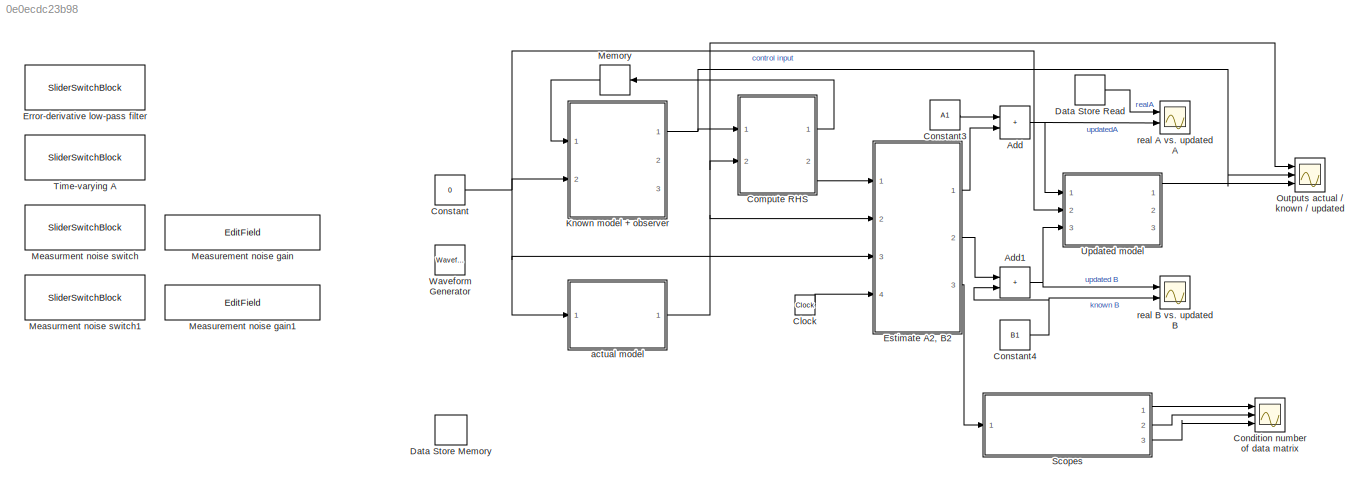
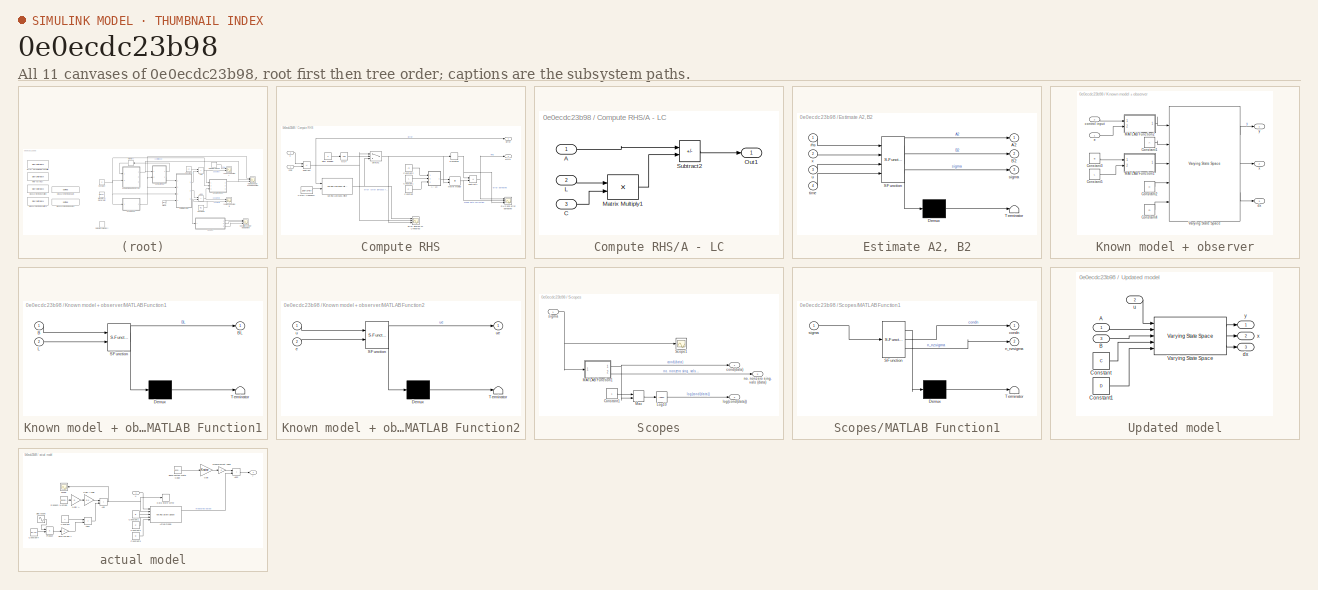
[diagram: thumbnail index - all 11 canvases of the model, root first then tree order]
MODEL slx_0e0ecdc23b98
KIND model
CONFIG AbsTol = auto
CONFIG EnableMultiTasking = on
CONFIG FixedStep = auto
CONFIG MaxStep = 0.01
CONFIG MinStep = auto
CONFIG RelTol = 1e-4
CONFIG SampleTimeConstraint = Unconstrained
CONFIG Solver = VariableStepAuto
CONFIG SolverName = VariableStepAuto
CONFIG StartTime = 0.0
CONFIG StopTime = 40
BLOCK [Sum] Add
  IconShape = rectangular
  Ports = [2, 1]
BLOCK [Sum] Add1
  IconShape = rectangular
  Ports = [2, 1]
BLOCK [Clock] Clock
BLOCK [SubSystem] Compute RHS
  Ports = [2, 2]
  RequestExecContextInheritance = off
BLOCK [SubSystem] Compute RHS/A - LC
  Ports = [3, 1]
  RequestExecContextInheritance = off
BLOCK [Inport] Compute RHS/A - LC/A
BLOCK [Inport] Compute RHS/A - LC/C
  Port = 3
BLOCK [Inport] Compute RHS/A - LC/L
  Port = 2
BLOCK [Product] Compute RHS/A - LC/Matrix Multiply1
  Multiplication = Matrix(*)
  Ports = [2, 1]
BLOCK [Outport] Compute RHS/A - LC/Out1
BLOCK [Sum] Compute RHS/A - LC/Subtract2
  IconShape = rectangular
  Inputs = +-
  Ports = [2, 1]
BLOCK [Constant] Compute RHS/Constant
  Value = C
BLOCK [Constant] Compute RHS/Constant1
  Value = L
BLOCK [Constant] Compute RHS/Constant2
  Value = A1
BLOCK [Constant] Compute RHS/Cutoff frequency
  SampleTime = 0.01
  Value = 100/(2*pi)
BLOCK [Derivative] Compute RHS/Derivative
BLOCK [Outport] Compute RHS/Error
BLOCK [Scope] Compute RHS/Error Filtered vs. Unfiltered
  Floating = off
  NumInputPorts = 3
  Ports = [3]
  ScopeSpecificationString = Simulink.scopes.TimeScopeBlockCfg('CurrentConfiguration', extmgr.ConfigurationSet(extmgr.Configuration('Core','General UI',true),extmgr.Configuration('Core','Source UI',true),extmgr.Configuration('Sources','WiredSimulink',true,'DataLoggingVariableName','ScopeData2'),extmgr.Configuration('Visuals','Time Domain',true,'SerializedDisplays',{struct('MinYLimReal','-38.1597','MaxYLimReal','13.1597','YLab...<+1705ch>
BLOCK [Constant] Compute RHS/Filter enabled
  Value = 0
BLOCK [Product] Compute RHS/Matrix Multiply
  Multiplication = Matrix(*)
  Ports = [2, 1]
BLOCK [Logic] Compute RHS/NOT
  AllPortsSameDT = off
  IconShape = distinctive
  Operator = NOT
  OutDataTypeStr = boolean
  Ports = [1, 1]
BLOCK [Outport] Compute RHS/RHS
  Port = 2
BLOCK [Scope] Compute RHS/RHS and error derivative
  Floating = off
  NumInputPorts = 3
  Ports = [3]
  ScopeSpecificationString = Simulink.scopes.TimeScopeBlockCfg('CurrentConfiguration', extmgr.ConfigurationSet(extmgr.Configuration('Core','General UI',true),extmgr.Configuration('Core','Source UI',true),extmgr.Configuration('Sources','WiredSimulink',true,'DataLoggingVariableName','ScopeData1'),extmgr.Configuration('Visuals','Time Domain',true,'SerializedDisplays',{struct('MinYLimReal','-1926.77261','MaxYLimReal','953.70205',...<+1696ch>
BLOCK [Sum] Compute RHS/Subtract
  IconShape = rectangular
  Inputs = +-
  Ports = [2, 1]
BLOCK [Sum] Compute RHS/Subtract1
  IconShape = rectangular
  Inputs = +-
  NameLocation = top
  Ports = [2, 1]
BLOCK [Switch] Compute RHS/Switch1
  Criteria = u2 > Threshold
  InputSameDT = off
  SaturateOnIntegerOverflow = off
BLOCK [Reference] Compute RHS/Varying Lowpass Filter  REF=cstblocks/Linear Parameter Varying/Varying Lowpass Filter
  Ports = [2, 1]
  SourceBlock = cstblocks/Linear Parameter Varying/Varying Lowpass Filter
  SourceProductBaseCode = CT
  SourceType = Varying Lowpass Filter
BLOCK [Inport] Compute RHS/x
  Port = 2
BLOCK [Inport] Compute RHS/xhat
  NameLocation = top
BLOCK [Scope] Condition number of data matrix
  Floating = off
  NumInputPorts = 3
  Ports = [3]
  ScopeSpecificationString = Simulink.scopes.TimeScopeBlockCfg('CurrentConfiguration', extmgr.ConfigurationSet(extmgr.Configuration('Core','General UI',true),extmgr.Configuration('Core','Source UI',true),extmgr.Configuration('Sources','WiredSimulink',true,'DataLoggingVariableName','ScopeData1'),extmgr.Configuration('Visuals','Time Domain',true,'SerializedDisplays',{struct('MinYLimReal','-225.95953','MaxYLimReal','2023.63573',...<+2862ch>
BLOCK [Constant] Constant
  Value = 0
BLOCK [Constant] Constant3
  Value = A1
BLOCK [Constant] Constant4
  Value = B1
BLOCK [DataStoreMemory] Data Store Memory
  DataStoreName = realA
  InitialValue = A
  ReadBeforeWriteMsg = warning
  ShowAdditionalParam = off
  WriteAfterReadMsg = warning
  WriteAfterWriteMsg = warning
BLOCK [DataStoreRead] Data Store Read
  DataStoreName = realA
  Ports = [0, 1]
BLOCK [SliderSwitchBlock] Error-derivative low-pass filter
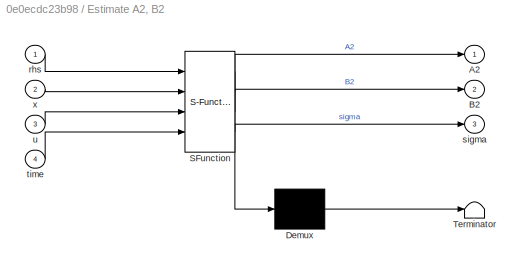
BLOCK [SubSystem] Estimate A2, B2
  ErrorFcn = Stateflow.Translate.translate
  PermitHierarchicalResolution = ExplicitOnly
  Ports = [4, 3]
  RequestExecContextInheritance = off
  SFBlockType = MATLAB Function
  TreatAsAtomicUnit = on
BLOCK [Demux] Estimate A2, B2/ Demux 
  Outputs = 1
  Ports = [1, 1]
BLOCK [S-Function] Estimate A2, B2/ SFunction 
  EnableBusSupport = on
  FunctionName = sf_sfun
  PortCounts = [4 4]
  Ports = [4, 4]
  SFcnIsStateOwnerBlock = off
  SFunctionDeploymentMode = off
  Tag = Stateflow S-Function 2
BLOCK [Terminator] Estimate A2, B2/ Terminator 
BLOCK [Outport] Estimate A2, B2/A2
BLOCK [Outport] Estimate A2, B2/B2
  Port = 2
BLOCK [Inport] Estimate A2, B2/rhs
BLOCK [Outport] Estimate A2, B2/sigma
  Port = 3
BLOCK [Inport] Estimate A2, B2/time
  Port = 4
BLOCK [Inport] Estimate A2, B2/u
  Port = 3
BLOCK [Inport] Estimate A2, B2/x
  Port = 2
BLOCK [SubSystem] Known model + observer
  Ports = [2, 3]
  RequestExecContextInheritance = off
BLOCK [Constant] Known model + observer/Constant1
  Value = A
BLOCK [Constant] Known model + observer/Constant2
  Value = C
BLOCK [Constant] Known model + observer/Constant3
  Value = B
BLOCK [Constant] Known model + observer/Constant4
  Value = D
BLOCK [Constant] Known model + observer/Constant5
  Value = L
BLOCK [SubSystem] Known model + observer/MATLAB Function1
  ErrorFcn = Stateflow.Translate.translate
  PermitHierarchicalResolution = ExplicitOnly
  Ports = [2, 1]
  RequestExecContextInheritance = off
  SFBlockType = MATLAB Function
  TreatAsAtomicUnit = on
BLOCK [Demux] Known model + observer/MATLAB Function1/ Demux 
  Outputs = 1
  Ports = [1, 1]
BLOCK [S-Function] Known model + observer/MATLAB Function1/ SFunction 
  EnableBusSupport = on
  FunctionName = sf_sfun
  PortCounts = [2 2]
  Ports = [2, 2]
  SFcnIsStateOwnerBlock = off
  SFunctionDeploymentMode = off
  Tag = Stateflow S-Function 1
BLOCK [Terminator] Known model + observer/MATLAB Function1/ Terminator 
BLOCK [Inport] Known model + observer/MATLAB Function1/B
BLOCK [Outport] Known model + observer/MATLAB Function1/BL
BLOCK [Inport] Known model + observer/MATLAB Function1/L
  Port = 2
BLOCK [SubSystem] Known model + observer/MATLAB Function2
  ErrorFcn = Stateflow.Translate.translate
  PermitHierarchicalResolution = ExplicitOnly
  Ports = [2, 1]
  RequestExecContextInheritance = off
  SFBlockType = MATLAB Function
  TreatAsAtomicUnit = on
BLOCK [Demux] Known model + observer/MATLAB Function2/ Demux 
  Outputs = 1
  Ports = [1, 1]
BLOCK [S-Function] Known model + observer/MATLAB Function2/ SFunction 
  EnableBusSupport = on
  FunctionName = sf_sfun
  PortCounts = [2 2]
  Ports = [2, 2]
  SFcnIsStateOwnerBlock = off
  SFunctionDeploymentMode = off
  Tag = Stateflow S-Function 4
BLOCK [Terminator] Known model + observer/MATLAB Function2/ Terminator 
BLOCK [Inport] Known model + observer/MATLAB Function2/e
  Port = 2
BLOCK [Inport] Known model + observer/MATLAB Function2/u
BLOCK [Outport] Known model + observer/MATLAB Function2/ue
BLOCK [Reference] Known model + observer/Varying State Space  REF=cstblocks/Linear Parameter Varying/Varying State Space
  Ports = [5, 3]
  SourceBlock = cstblocks/Linear Parameter Varying/Varying State Space
  SourceProductBaseCode = CT
  SourceType = Varying State Space
BLOCK [Inport] Known model + observer/control input
  Port = 2
BLOCK [Outport] Known model + observer/dx
  Port = 3
BLOCK [Inport] Known model + observer/e
BLOCK [Outport] Known model + observer/x
  Port = 2
BLOCK [Outport] Known model + observer/y
BLOCK [EditField] Measurement noise gain
  Alignment = Center
  LabelPosition = Hide
  ShowInitialText = on
BLOCK [EditField] Measurement noise gain1
  Alignment = Center
  LabelPosition = Hide
  ShowInitialText = on
BLOCK [SliderSwitchBlock] Measurment noise switch
BLOCK [SliderSwitchBlock] Measurment noise switch1
BLOCK [Memory] Memory
  NameLocation = top
BLOCK [Scope] Outputs actual // known // updated
  Floating = off
  NumInputPorts = 3
  Ports = [3]
  ScopeSpecificationString = Simulink.scopes.TimeScopeBlockCfg('CurrentConfiguration', extmgr.ConfigurationSet(extmgr.Configuration('Core','General UI',true),extmgr.Configuration('Core','Source UI',true),extmgr.Configuration('Sources','WiredSimulink',true,'DataLoggingVariableName','ScopeData2'),extmgr.Configuration('Visuals','Time Domain',true,'SerializedDisplays',{struct('MinYLimReal','-46.51156','MaxYLimReal','51.64503','YL...<+1702ch>
BLOCK [SubSystem] Scopes
  Ports = [1, 3]
  RequestExecContextInheritance = off
BLOCK [Constant] Scopes/Constant1
BLOCK [Math] Scopes/Log10
  Operator = log10
  Ports = [1, 1]
BLOCK [SubSystem] Scopes/MATLAB Function1
  ErrorFcn = Stateflow.Translate.translate
  PermitHierarchicalResolution = ExplicitOnly
  Ports = [1, 2]
  RequestExecContextInheritance = off
  SFBlockType = MATLAB Function
  TreatAsAtomicUnit = on
BLOCK [Demux] Scopes/MATLAB Function1/ Demux 
  Outputs = 1
  Ports = [1, 1]
BLOCK [S-Function] Scopes/MATLAB Function1/ SFunction 
  EnableBusSupport = on
  FunctionName = sf_sfun
  PortCounts = [1 3]
  Ports = [1, 3]
  SFcnIsStateOwnerBlock = off
  SFunctionDeploymentMode = off
  Tag = Stateflow S-Function 3
BLOCK [Terminator] Scopes/MATLAB Function1/ Terminator 
BLOCK [Outport] Scopes/MATLAB Function1/condn
BLOCK [Outport] Scopes/MATLAB Function1/n_nzsigma
  Port = 2
BLOCK [Inport] Scopes/MATLAB Function1/sigma
BLOCK [MinMax] Scopes/Max
  Function = max
  Inputs = 2
  Ports = [2, 1]
BLOCK [Scope] Scopes/Scope1
  Floating = off
  NumInputPorts = 1
  Ports = [1]
  ScopeSpecificationString = Simulink.scopes.TimeScopeBlockCfg('CurrentConfiguration', extmgr.ConfigurationSet(extmgr.Configuration('Core','General UI',true),extmgr.Configuration('Core','Source UI',true),extmgr.Configuration('Sources','WiredSimulink',true,'DataLoggingVariableName','ScopeData3'),extmgr.Configuration('Visuals','Time Domain',true,'SerializedDisplays',{struct('MinYLimReal','-19.78306','MaxYLimReal','178.0475','YL...<+1558ch>
BLOCK [Outport] Scopes/cond(data)
BLOCK [Outport] Scopes/log(cond(data))
  Port = 2
BLOCK [Outport] Scopes/no. nonzero sing. vals (data)
  Port = 3
BLOCK [Inport] Scopes/sigma
BLOCK [SliderSwitchBlock] Time-varying A
BLOCK [SubSystem] Updated model
  Ports = [3, 3]
  RequestExecContextInheritance = off
BLOCK [Inport] Updated model/A
BLOCK [Inport] Updated model/B
  Port = 3
BLOCK [Constant] Updated model/Constant
  Value = C
BLOCK [Constant] Updated model/Constant1
  Value = D
BLOCK [Reference] Updated model/Varying State Space  REF=cstblocks/Linear Parameter Varying/Varying State Space
  Ports = [5, 3]
  SourceBlock = cstblocks/Linear Parameter Varying/Varying State Space
  SourceProductBaseCode = CT
  SourceType = Varying State Space
BLOCK [Outport] Updated model/dx
  Port = 3
BLOCK [Inport] Updated model/u
  Port = 2
BLOCK [Outport] Updated model/x
  Port = 2
BLOCK [Outport] Updated model/y
BLOCK [Reference] Waveform Generator  REF=simulink/Sources/Waveform
Generator
  Ports = [0, 1]
  SourceBlock = simulink/Sources/Waveform\nGenerator
  SourceProductBaseCode = SL
  SourceType = WaveformGenerator
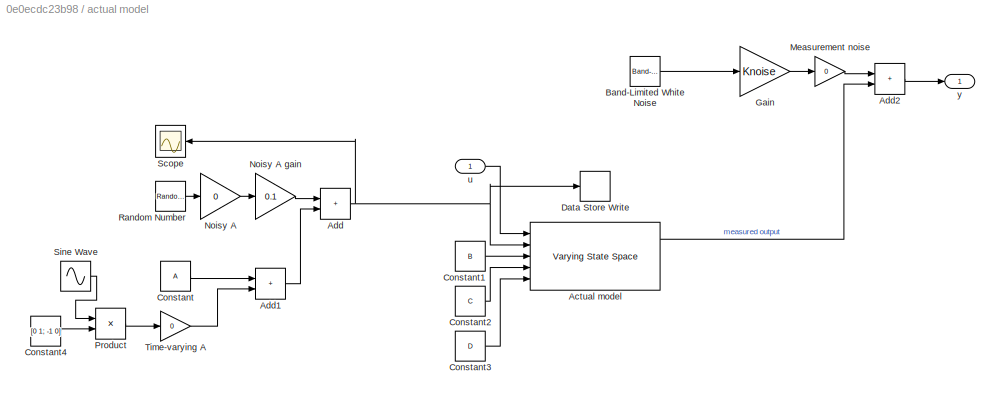
BLOCK [SubSystem] actual model
  Ports = [1, 1]
  RequestExecContextInheritance = off
BLOCK [Reference] actual model/Actual model  REF=cstblocks/Linear Parameter Varying/Varying State Space
  Ports = [5, 3]
  SourceBlock = cstblocks/Linear Parameter Varying/Varying State Space
  SourceProductBaseCode = CT
  SourceType = Varying State Space
BLOCK [Sum] actual model/Add
  IconShape = rectangular
  Ports = [2, 1]
BLOCK [Sum] actual model/Add1
  IconShape = rectangular
  Ports = [2, 1]
BLOCK [Sum] actual model/Add2
  IconShape = rectangular
  Ports = [2, 1]
BLOCK [Reference] actual model/Band-Limited White Noise  REF=simulink/Sources/Band-Limited
White Noise
  Ports = [0, 1]
  SourceBlock = simulink/Sources/Band-Limited\nWhite Noise
  SourceProductBaseCode = SL
  SourceType = Band-Limited White Noise.
BLOCK [Constant] actual model/Constant
  Value = A
BLOCK [Constant] actual model/Constant1
  Value = B
BLOCK [Constant] actual model/Constant2
  Value = C
BLOCK [Constant] actual model/Constant3
  Value = D
BLOCK [Constant] actual model/Constant4
  Value = [0 1; -1 0]
BLOCK [DataStoreWrite] actual model/Data Store Write
  DataStoreName = realA
  Ports = [1]
BLOCK [Gain] actual model/Gain
  Gain = Knoise
BLOCK [Gain] actual model/Measurement noise
  Gain = 0
BLOCK [Gain] actual model/Noisy A
  Gain = 0
BLOCK [Gain] actual model/Noisy A gain
  Gain = 0.1
BLOCK [Product] actual model/Product
  Ports = [2, 1]
BLOCK [RandomNumber] actual model/Random Number
  Mean = [1 1; 1 1]
  SampleTime = 0.1
  Variance = 0.1
BLOCK [Scope] actual model/Scope
  Floating = off
  NameLocation = top
  NumInputPorts = 1
  Ports = [1]
  ScopeSpecificationString = Simulink.scopes.TimeScopeBlockCfg('CurrentConfiguration', extmgr.ConfigurationSet(extmgr.Configuration('Core','General UI',true),extmgr.Configuration('Core','Source UI',true),extmgr.Configuration('Sources','WiredSimulink',true,'DataLoggingVariableName','ScopeData1'),extmgr.Configuration('Visuals','Time Domain',true,'SerializedDisplays',{struct('MinYLimReal','-2.375','MaxYLimReal','1.375','YLabelRe...<+1539ch>
BLOCK [Sin] actual model/Sine Wave
  Frequency = 0.05*(2*pi)
  Ports = [0, 1]
  SampleTime = 0
BLOCK [Gain] actual model/Time-varying A
  Gain = 0
BLOCK [Inport] actual model/u
BLOCK [Outport] actual model/y
BLOCK [Scope] real A vs. updated A
  Floating = off
  NumInputPorts = 2
  Ports = [2]
  ScopeSpecificationString = Simulink.scopes.TimeScopeBlockCfg('CurrentConfiguration', extmgr.ConfigurationSet(extmgr.Configuration('Core','General UI',true),extmgr.Configuration('Core','Source UI',true),extmgr.Configuration('Sources','WiredSimulink',true),extmgr.Configuration('Visuals','Time Domain',true,'SerializedDisplays',{struct('MinYLimReal','-2.5','MaxYLimReal','2.5','YLabelReal','','MinYLimMag','0.00000','MaxYLimMag',...<+1786ch>
BLOCK [Scope] real B vs. updated B
  Floating = off
  NumInputPorts = 2
  Ports = [2]
  ScopeSpecificationString = Simulink.scopes.TimeScopeBlockCfg('CurrentConfiguration', extmgr.ConfigurationSet(extmgr.Configuration('Core','General UI',true),extmgr.Configuration('Core','Source UI',true),extmgr.Configuration('Sources','WiredSimulink',true,'DataLoggingVariableName','ScopeData3'),extmgr.Configuration('Visuals','Time Domain',true,'SerializedDisplays',{struct('MinYLimReal','-0.125','MaxYLimReal','1.125','YLabelRe...<+1468ch>
NET Add1:1 -> Updated model:3, real B vs. updated B:1
NET Add:1 -> Updated model:1, real A vs. updated A:2
LINE Clock:1 -> Estimate A2, B2:4
LINE Compute RHS/A - LC/A:1 -> Compute RHS/A - LC/Subtract2:1
LINE Compute RHS/A - LC/C:1 -> Compute RHS/A - LC/Matrix Multiply1:2
LINE Compute RHS/A - LC/L:1 -> Compute RHS/A - LC/Matrix Multiply1:1
LINE Compute RHS/A - LC/Matrix Multiply1:1 -> Compute RHS/A - LC/Subtract2:2
LINE Compute RHS/A - LC/Subtract2:1 -> Compute RHS/A - LC/Out1:1
LINE Compute RHS/A - LC:1 -> Compute RHS/Matrix Multiply:1
LINE Compute RHS/Constant1:1 -> Compute RHS/A - LC:2
LINE Compute RHS/Constant2:1 -> Compute RHS/A - LC:1
LINE Compute RHS/Constant:1 -> Compute RHS/A - LC:3
LINE Compute RHS/Cutoff frequency:1 -> Compute RHS/Varying Lowpass Filter:2
NET Compute RHS/Derivative:1 -> Compute RHS/RHS and error derivative:3, Compute RHS/Subtract1:1
LINE Compute RHS/Filter enabled:1 -> Compute RHS/NOT:1
NET Compute RHS/Matrix Multiply:1 -> Compute RHS/RHS and error derivative:2, Compute RHS/Subtract1:2
LINE Compute RHS/NOT:1 -> Compute RHS/Switch1:2
NET Compute RHS/Subtract1:1 -> Compute RHS/RHS and error derivative:1, Compute RHS/RHS:1
NET Compute RHS/Subtract:1 -> Compute RHS/Error Filtered vs. Unfiltered:2, Compute RHS/Error:1, Compute RHS/Switch1:1, Compute RHS/Varying Lowpass Filter:1
NET Compute RHS/Switch1:1 -> Compute RHS/Derivative:1, Compute RHS/Error Filtered vs. Unfiltered:3, Compute RHS/Matrix Multiply:2
NET Compute RHS/Varying Lowpass Filter:1 -> Compute RHS/Error Filtered vs. Unfiltered:1, Compute RHS/Switch1:3
LINE Compute RHS/x:1 -> Compute RHS/Subtract:1
LINE Compute RHS/xhat:1 -> Compute RHS/Subtract:2
LINE Compute RHS:1 -> Memory:1
LINE Compute RHS:2 -> Estimate A2, B2:1
LINE Constant3:1 -> Add:1
NET Constant4:1 -> Add1:2, real B vs. updated B:2
NET Constant:1 -> Estimate A2, B2:3, Known model + observer:2, Updated model:2, actual model:1
LINE Data Store Read:1 -> real A vs. updated A:1
LINE Estimate A2, B2:1 -> Add:2
LINE Estimate A2, B2:2 -> Add1:1
LINE Estimate A2, B2:3 -> Scopes:1
LINE Known model + observer/Constant1:1 -> Known model + observer/Varying State Space:2
LINE Known model + observer/Constant2:1 -> Known model + observer/Varying State Space:4
LINE Known model + observer/Constant3:1 -> Known model + observer/MATLAB Function1:1
LINE Known model + observer/Constant4:1 -> Known model + observer/Varying State Space:5
LINE Known model + observer/Constant5:1 -> Known model + observer/MATLAB Function1:2
LINE Known model + observer/MATLAB Function1:1 -> Known model + observer/Varying State Space:3
LINE Known model + observer/MATLAB Function2:1 -> Known model + observer/Varying State Space:1
LINE Known model + observer/Varying State Space:1 -> Known model + observer/y:1
LINE Known model + observer/Varying State Space:2 -> Known model + observer/x:1
LINE Known model + observer/Varying State Space:3 -> Known model + observer/dx:1
LINE Known model + observer/control input:1 -> Known model + observer/MATLAB Function2:1
LINE Known model + observer/e:1 -> Known model + observer/MATLAB Function2:2
NET Known model + observer:1 -> Compute RHS:1, Outputs actual // known // updated:2
LINE Memory:1 -> Known model + observer:1
LINE Scopes/Constant1:1 -> Scopes/Max:1
LINE Scopes/Log10:1 -> Scopes/log(cond(data)):1
NET Scopes/MATLAB Function1:1 -> Scopes/Max:2, Scopes/cond(data):1
LINE Scopes/MATLAB Function1:2 -> Scopes/no. nonzero sing. vals (data):1
LINE Scopes/Max:1 -> Scopes/Log10:1
NET Scopes/sigma:1 -> Scopes/MATLAB Function1:1, Scopes/Scope1:1
LINE Scopes:1 -> Condition number of data matrix:1
LINE Scopes:2 -> Condition number of data matrix:2
LINE Scopes:3 -> Condition number of data matrix:3
LINE Updated model/A:1 -> Updated model/Varying State Space:2
LINE Updated model/B:1 -> Updated model/Varying State Space:3
LINE Updated model/Constant1:1 -> Updated model/Varying State Space:5
LINE Updated model/Constant:1 -> Updated model/Varying State Space:4
LINE Updated model/Varying State Space:1 -> Updated model/y:1
LINE Updated model/Varying State Space:2 -> Updated model/x:1
LINE Updated model/Varying State Space:3 -> Updated model/dx:1
LINE Updated model/u:1 -> Updated model/Varying State Space:1
LINE Updated model:1 -> Outputs actual // known // updated:3
LINE actual model/Actual model:1 -> actual model/Add2:2
LINE actual model/Add1:1 -> actual model/Add:2
LINE actual model/Add2:1 -> actual model/y:1
NET actual model/Add:1 -> actual model/Actual model:2, actual model/Data Store Write:1, actual model/Scope:1
LINE actual model/Band-Limited White Noise:1 -> actual model/Gain:1
LINE actual model/Constant1:1 -> actual model/Actual model:3
LINE actual model/Constant2:1 -> actual model/Actual model:4
LINE actual model/Constant3:1 -> actual model/Actual model:5
LINE actual model/Constant4:1 -> actual model/Product:2
LINE actual model/Constant:1 -> actual model/Add1:1
LINE actual model/Gain:1 -> actual model/Measurement noise:1
LINE actual model/Measurement noise:1 -> actual model/Add2:1
LINE actual model/Noisy A gain:1 -> actual model/Add:1
LINE actual model/Noisy A:1 -> actual model/Noisy A gain:1
LINE actual model/Product:1 -> actual model/Time-varying A:1
LINE actual model/Random Number:1 -> actual model/Noisy A:1
LINE actual model/Sine Wave:1 -> actual model/Product:1
LINE actual model/Time-varying A:1 -> actual model/Add1:2
LINE actual model/u:1 -> actual model/Actual model:1
NET actual model:1 -> Compute RHS:2, Estimate A2, B2:2, Outputs actual // known // updated:1
note: NET lines group one-source signal fan-out (src -> all destinations, sorted); 1:1 wires keep LINE
CHART Known model + observer/MATLAB Function1 states=1 transitions=1
  STATE_LABEL 'eML_blk_kernel()'
  STATE_LABEL 'SCRIPT:\nfunction BL = append_hori(B,L)\nBL = [B L];'
CHART Estimate A2, B2 states=1 transitions=1
  STATE_LABEL 'eML_blk_kernel()'
  STATE_LABEL 'SCRIPT:\nfunction [A2, B2, sigma] = fcn(rhs, x, u, time)\n\npersistent rhs_store u_store x_store \npersistent time_last store_index\npersistent time_debug_last\n\ndt_debug = 1; % can be used to stop simulation at certain time\ndt_min = 0.01; % time between new data points\nstore_maxsize = 50; % number of data points used for estimation\n\n% initialize persistent variables\nif isempty(store_index)\n    store_in...<+1617ch>'
CHART Scopes/MATLAB Function1 states=1 transitions=1
  STATE_LABEL 'eML_blk_kernel()'
  STATE_LABEL 'SCRIPT:\nfunction [condn, n_nzsigma] = fcn(sigma)\nis_sigma_nz = sigma > 0;\nsigma_nz = sigma(is_sigma_nz);\nn_nzsigma = sum(is_sigma_nz);\nif ~isempty(sigma_nz)\n    condn = max(sigma_nz) / min(sigma_nz);\nelse\n    condn = -1;\nend\n'
CHART Known model + observer/MATLAB Function2 states=1 transitions=1
  STATE_LABEL 'eML_blk_kernel()'
  STATE_LABEL 'SCRIPT:\nfunction ue = append_vert(u,e)\nue  = [u;e];\n'
CHART  states=0 transitions=0
CHART  states=0 transitions=0
CHART  states=0 transitions=0
CHART  states=0 transitions=0
